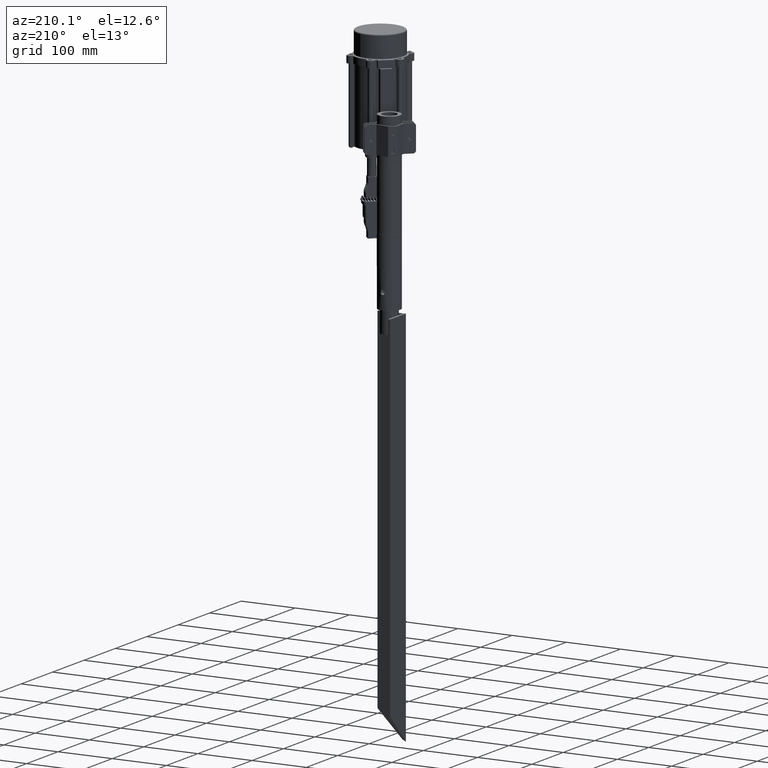
[diagram: clean part render]
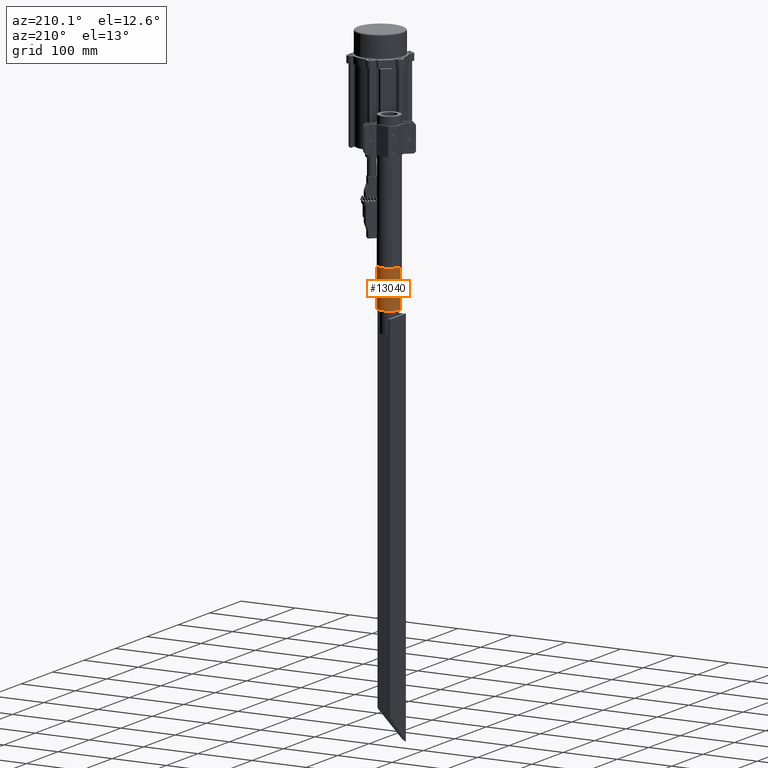
[diagram: same view with one face highlighted and labeled with its STEP entity id]
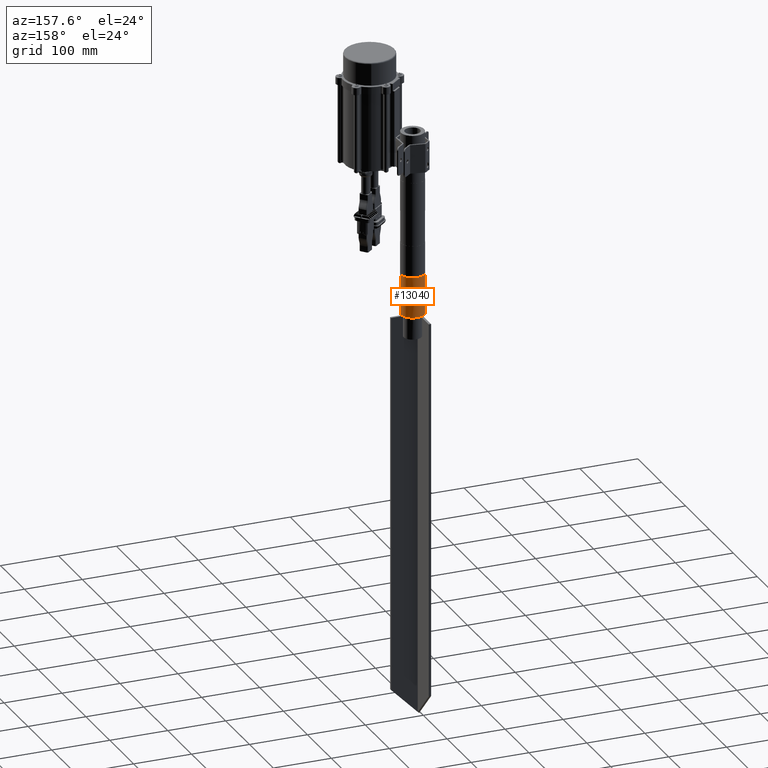
[diagram: same view with one face highlighted and labeled with its STEP entity id]
A machine part, auxiliary view. The second image highlights one B-rep face of the part: STEP entity #13040.
A second angle (auxiliary view) of the same face is appended — the face is thin or edge-on in the first view.
In plain terms, the highlighted cylindrical surface (edge-blend (fillet) strip) has radius 20 mm, axis along (-0, 0, -1).
Its self-contained STEP definition (entity closure, byte-faithful):
#133 = CARTESIAN_POINT ( 'NONE',  ( 3.340632898342827500, 19.71964007639547800, 32.56042299679841500 ) ) ;
#1154 = CARTESIAN_POINT ( 'NONE',  ( 3.338848791572816700, 19.71993705928639400, 27.43742100624696800 ) ) ;
#1196 = DIRECTION ( 'NONE',  ( 1.000000000000000000, 0.0000000000000000000, 0.0000000000000000000 ) ) ;
#1416 = CARTESIAN_POINT ( 'NONE',  ( -1.865290054462114300, 19.91445983498254100, 33.77311992754982800 ) ) ;
#1561 = CARTESIAN_POINT ( 'NONE',  ( -4.172591554658762200, 19.55997198012134000, 29.44765569589234400 ) ) ;
#1700 = CARTESIAN_POINT ( 'NONE',  ( -0.5533532157932989900, 19.99417020490393800, 25.82751478211955000 ) ) ;
#2556 = ORIENTED_EDGE ( 'NONE', *, *, #24304, .T. ) ;
#2959 = CARTESIAN_POINT ( 'NONE',  ( 4.188292898292406800E-015, 20.00000000000000000, 25.79999999999999700 ) ) ;
#2998 = CARTESIAN_POINT ( 'NONE',  ( 3.772138045308473400, 19.64135040021533000, 28.13260208930638500 ) ) ;
#3117 = CARTESIAN_POINT ( 'NONE',  ( 2.778913330987656100, 19.80695987016902000, 33.16102730806841900 ) ) ;
#3124 = CARTESIAN_POINT ( 'NONE',  ( 20.00000000000000000, 2.449293598294706100E-015, 0.0000000000000000000 ) ) ;
#3420 = EDGE_LOOP ( 'NONE', ( #36013, #2556 ) ) ;
#4408 = EDGE_CURVE ( 'NONE', #8132, #35643, #32247, .T. ) ;
#4435 = CARTESIAN_POINT ( 'NONE',  ( -2.562249070927306200, 19.83652140974255600, 33.33917613590236300 ) ) ;
#4550 = CARTESIAN_POINT ( 'NONE',  ( -3.985370952293801200, 19.59919409296579600, 28.64616712573360900 ) ) ;
#4657 = CARTESIAN_POINT ( 'NONE',  ( 4.188292898292406800E-015, 20.00000000000000000, 25.79999999999999700 ) ) ;
#5199 = DIRECTION ( 'NONE',  ( -0.0000000000000000000, -0.0000000000000000000, -1.000000000000000000 ) ) ;
#5903 = DIRECTION ( 'NONE',  ( -0.0000000000000000000, -0.0000000000000000000, -1.000000000000000000 ) ) ;
#5952 = CARTESIAN_POINT ( 'NONE',  ( 4.064755719125387600, 19.58266512661898100, 28.90785091719367000 ) ) ;
#6069 = CARTESIAN_POINT ( 'NONE',  ( 2.107803092557887200, 19.88996432545421600, 33.64330035821642200 ) ) ;
#7364 = CARTESIAN_POINT ( 'NONE',  ( -3.163717384922481600, 19.74915237648187000, 32.77587885422021000 ) ) ;
#7483 = CARTESIAN_POINT ( 'NONE',  ( -3.642939369713126500, 19.66603119724990400, 27.89201163190804400 ) ) ;
#7508 = ORIENTED_EDGE ( 'NONE', *, *, #20117, .T. ) ;
#7954 = B_SPLINE_CURVE_WITH_KNOTS ( 'NONE', 3,
 ( #30754, #10180, #16108, #36689, #19075, #1416, #22036, #4435, #24968, #7364, #27958, #10336, #30863, #13300, #33865, #16231, #36800, #19202, #1561, #22149, #4550, #25112, #7483, #28072, #10457, #31009, #13407, #33987, #16371, #36922, #19321, #1700, #22299, #4657 ),
 .UNSPECIFIED., .F., .F.,
 ( 4, 2, 2, 2, 2, 2, 2, 2, 2, 2, 2, 2, 2, 2, 2, 2, 4 ),
 ( 3.447912666726265800E-019, 0.0008229896707890208900, 0.001645979341578041600, 0.002468969012367062300, 0.003291958683156082700, 0.004114948353945102600, 0.004937938024734123800, 0.005760927695523144200, 0.006583917366312164500, 0.007406907037101184900, 0.008229896707890205200, 0.009052886378679226400, 0.009875876049468247700, 0.01069886572025726700, 0.01152185539104628800, 0.01234484506183530800, 0.01316783473262432900 ),
 .UNSPECIFIED. ) ;
#8079 = DIRECTION ( 'NONE',  ( -0.0000000000000000000, -0.0000000000000000000, -1.000000000000000000 ) ) ;
#8132 = VERTEX_POINT ( 'NONE', #3124 ) ;
#8640 = VERTEX_POINT ( 'NONE', #2959 ) ;
#8741 = CARTESIAN_POINT ( 'NONE',  ( 1.092214860408398500, 19.97201250342688200, 25.93501599662998900 ) ) ;
#8878 = CARTESIAN_POINT ( 'NONE',  ( 4.199870236491766400, 19.55405558993127400, 29.72080140502662000 ) ) ;
#9029 = CARTESIAN_POINT ( 'NONE',  ( 1.361399914003751200, 19.95521969683762700, 33.98264056039925400 ) ) ;
#10180 = CARTESIAN_POINT ( 'NONE',  ( -0.2783380511143903100, 19.99999999999999600, 34.20000000000000300 ) ) ;
#10336 = CARTESIAN_POINT ( 'NONE',  ( -3.644306406445800000, 19.66579103796113900, 32.10600225674826200 ) ) ;
#10457 = CARTESIAN_POINT ( 'NONE',  ( -3.164613277795754100, 19.74902888785459600, 27.22487325469942800 ) ) ;
#11739 = CARTESIAN_POINT ( 'NONE',  ( 1.861490608868710400, 19.91479825350307200, 26.22511422665705500 ) ) ;
#11859 = CARTESIAN_POINT ( 'NONE',  ( 4.173073512967138600, 19.55986808386858700, 30.54844857985792900 ) ) ;
#11984 = CARTESIAN_POINT ( 'NONE',  ( 0.5528406535147852900, 19.99419679058095800, 34.17261522619426700 ) ) ;
#12569 = EDGE_CURVE ( 'NONE', #34386, #21571, #21355, .T. ) ;
#12587 = CARTESIAN_POINT ( 'NONE',  ( 20.00000000000000000, 2.449293598294706100E-015, 70.00000000000000000 ) ) ;
#13040 = ADVANCED_FACE ( 'NONE', ( #35110, #34175 ), #25436, .T. ) ;
#13300 = CARTESIAN_POINT ( 'NONE',  ( -3.983916382603967400, 19.59948544255731000, 31.35763819390511400 ) ) ;
#13398 = CARTESIAN_POINT ( 'NONE',  ( 0.0000000000000000000, 0.0000000000000000000, 70.00000000000000000 ) ) ;
#13407 = CARTESIAN_POINT ( 'NONE',  ( -2.563152241000632000, 19.83639465825728400, 26.66159512432502500 ) ) ;
#13531 = LINE ( 'NONE', #23488, #36068 ) ;
#14137 = B_SPLINE_CURVE_WITH_KNOTS ( 'NONE', 3,
 ( #23317, #17505, #26392, #8741, #29335, #11739, #32266, #14682, #35267, #17628, #1154, #20608, #2998, #23535, #5952, #26528, #8878, #29454, #11859, #32413, #14803, #35386, #17763, #133, #20729, #3117, #23685, #6069, #26644, #9029, #29577, #11984, #32538, #14953 ),
 .UNSPECIFIED., .F., .F.,
 ( 4, 2, 2, 2, 2, 2, 2, 2, 2, 2, 2, 2, 2, 2, 2, 2, 4 ),
 ( 0.01316783473262432900, 0.01399060964804361600, 0.01481338456346290400, 0.01563615947888219100, 0.01645893439430147800, 0.01728170930972076200, 0.01810448422514005300, 0.01892725914055933700, 0.01975003405597862400, 0.02057280897139791100, 0.02139558388681719900, 0.02221835880223648600, 0.02304113371765577300, 0.02386390863307506100, 0.02468668354849434800, 0.02550945846391363500, 0.02633223337933291900 ),
 .UNSPECIFIED. ) ;
#14682 = CARTESIAN_POINT ( 'NONE',  ( 2.563687760922376000, 19.83634061902229800, 26.66188087817690900 ) ) ;
#14803 = CARTESIAN_POINT ( 'NONE',  ( 3.984971638402675900, 19.59927255651121300, 31.35475609599886600 ) ) ;
#14953 = CARTESIAN_POINT ( 'NONE',  ( 3.549401769343951800E-016, 20.00000000000000000, 34.20000000000000300 ) ) ;
#15883 = AXIS2_PLACEMENT_3D ( 'NONE', #13398, #33982, #16362 ) ;
#16108 = CARTESIAN_POINT ( 'NONE',  ( -0.5518720823967746500, 19.99419648656537900, 34.17260632677036400 ) ) ;
#16231 = CARTESIAN_POINT ( 'NONE',  ( -4.173073762568107800, 19.55986981503911100, 30.54951977811592900 ) ) ;
#16362 = DIRECTION ( 'NONE',  ( 1.000000000000000000, 0.0000000000000000000, 0.0000000000000000000 ) ) ;
#16364 = EDGE_LOOP ( 'NONE', ( #27669, #7508, #30303, #37066 ) ) ;
#16371 = CARTESIAN_POINT ( 'NONE',  ( -1.862887576433846200, 19.91468012257299600, 26.22572578509388200 ) ) ;
#16908 = CARTESIAN_POINT ( 'NONE',  ( -20.00000000000000000, 0.0000000000000000000, 318.0000000000000000 ) ) ;
#17227 = CARTESIAN_POINT ( 'NONE',  ( -20.00000000000000000, 0.0000000000000000000, 70.00000000000000000 ) ) ;
#17353 = VECTOR ( 'NONE', #5199, 1000.000000000000000 ) ;
#17505 = CARTESIAN_POINT ( 'NONE',  ( 0.2744674568845612000, 20.00000000000000400, 25.80000000000000400 ) ) ;
#17628 = CARTESIAN_POINT ( 'NONE',  ( 3.161920558549812500, 19.74944587354189100, 27.22201585688232900 ) ) ;
#17763 = CARTESIAN_POINT ( 'NONE',  ( 3.645917826818178200, 19.66548540220053500, 32.10306378507976200 ) ) ;
#18634 = VERTEX_POINT ( 'NONE', #33511 ) ;
#18658 = CARTESIAN_POINT ( 'NONE',  ( -20.00000000000000000, 0.0000000000000000000, 0.0000000000000000000 ) ) ;
#18831 = DIRECTION ( 'NONE',  ( 0.0000000000000000000, 0.0000000000000000000, 1.000000000000000000 ) ) ;
#19075 = CARTESIAN_POINT ( 'NONE',  ( -1.356976831066771100, 19.95554137041529000, 33.98426340179674600 ) ) ;
#19202 = CARTESIAN_POINT ( 'NONE',  ( -4.200108778611416400, 19.55400435359175800, 29.72687047538478900 ) ) ;
#19321 = CARTESIAN_POINT ( 'NONE',  ( -1.093420486391702500, 19.97191712390264900, 25.93548719834731700 ) ) ;
#20117 = EDGE_CURVE ( 'NONE', #34386, #8132, #13531, .T. ) ;
#20608 = CARTESIAN_POINT ( 'NONE',  ( 3.642841742020645100, 19.66605026226151100, 27.89181917407363500 ) ) ;
#20729 = CARTESIAN_POINT ( 'NONE',  ( 3.164551635925968700, 19.74901596392045300, 32.77489925709987500 ) ) ;
#21355 = CIRCLE ( 'NONE', #15883, 20.00000000000000000 ) ;
#21571 = VERTEX_POINT ( 'NONE', #17227 ) ;
#22036 = CARTESIAN_POINT ( 'NONE',  ( -2.106248871028048300, 19.89010853751019400, 33.64402706649399000 ) ) ;
#22095 = AXIS2_PLACEMENT_3D ( 'NONE', #32260, #8079, #29331 ) ;
#22149 = CARTESIAN_POINT ( 'NONE',  ( -4.064964631846025100, 19.58262205852378200, 28.90836496294286600 ) ) ;
#22299 = CARTESIAN_POINT ( 'NONE',  ( -0.2745390965992299800, 20.00000000000000400, 25.79999999999999700 ) ) ;
#23317 = CARTESIAN_POINT ( 'NONE',  ( 4.188292898292406800E-015, 20.00000000000000000, 25.79999999999999700 ) ) ;
#23488 = CARTESIAN_POINT ( 'NONE',  ( 20.00000000000000000, 2.449293598294706100E-015, 318.0000000000000000 ) ) ;
#23535 = CARTESIAN_POINT ( 'NONE',  ( 3.984101755403648900, 19.59945418065239800, 28.64237943728151200 ) ) ;
#23685 = CARTESIAN_POINT ( 'NONE',  ( 2.567297225680597300, 19.83588918349391200, 33.33548442241740900 ) ) ;
#24304 = EDGE_CURVE ( 'NONE', #8640, #18634, #14137, .T. ) ;
#24968 = CARTESIAN_POINT ( 'NONE',  ( -2.777525012803539400, 19.80715734486932800, 33.16227226977982000 ) ) ;
#25112 = CARTESIAN_POINT ( 'NONE',  ( -3.774140768395599600, 19.64096362660108500, 28.13669472732837900 ) ) ;
#25165 = LINE ( 'NONE', #16908, #17353 ) ;
#25436 = CYLINDRICAL_SURFACE ( 'NONE', #22095, 20.00000000000000000 ) ;
#26392 = CARTESIAN_POINT ( 'NONE',  ( 0.5478180382495967400, 19.99435200588668600, 25.82664120330885300 ) ) ;
#26528 = CARTESIAN_POINT ( 'NONE',  ( 4.172175893427454900, 19.56006034836715200, 29.44504325435212900 ) ) ;
#26644 = CARTESIAN_POINT ( 'NONE',  ( 1.866512879255006800, 19.91432480769762100, 33.77239515835256600 ) ) ;
#27099 = EDGE_CURVE ( 'NONE', #18634, #8640, #7954, .T. ) ;
#27669 = ORIENTED_EDGE ( 'NONE', *, *, #12569, .F. ) ;
#27958 = CARTESIAN_POINT ( 'NONE',  ( -3.337282877563797300, 19.72021423128903100, 32.56490890376445400 ) ) ;
#28072 = CARTESIAN_POINT ( 'NONE',  ( -3.339193164920373200, 19.71987777117193700, 27.43788930395934900 ) ) ;
#28851 = EDGE_CURVE ( 'NONE', #21571, #35643, #25165, .T. ) ;
#29331 = DIRECTION ( 'NONE',  ( -1.000000000000000000, 0.0000000000000000000, 0.0000000000000000000 ) ) ;
#29335 = CARTESIAN_POINT ( 'NONE',  ( 1.355840385163133300, 19.95560155982765200, 26.01545401097514800 ) ) ;
#29454 = CARTESIAN_POINT ( 'NONE',  ( 4.200128849857164500, 19.55400004249998200, 30.27528077194391200 ) ) ;
#29577 = CARTESIAN_POINT ( 'NONE',  ( 1.094738525459736600, 19.97185734100689200, 34.06422171822861600 ) ) ;
#30303 = ORIENTED_EDGE ( 'NONE', *, *, #4408, .T. ) ;
#30754 = CARTESIAN_POINT ( 'NONE',  ( 3.549401769343951800E-016, 20.00000000000000000, 34.20000000000000300 ) ) ;
#30863 = CARTESIAN_POINT ( 'NONE',  ( -3.774252074308329000, 19.64093787567629300, 31.86273790123826500 ) ) ;
#31009 = CARTESIAN_POINT ( 'NONE',  ( -2.774427515353557400, 19.80761144543595600, 26.83477368699600900 ) ) ;
#31932 = AXIS2_PLACEMENT_3D ( 'NONE', #36448, #18831, #1196 ) ;
#32247 = CIRCLE ( 'NONE', #31932, 20.00000000000000000 ) ;
#32260 = CARTESIAN_POINT ( 'NONE',  ( 0.0000000000000000000, 0.0000000000000000000, 318.0000000000000000 ) ) ;
#32266 = CARTESIAN_POINT ( 'NONE',  ( 2.106816570671456600, 19.89005349482301500, 26.35625767314313700 ) ) ;
#32413 = CARTESIAN_POINT ( 'NONE',  ( 4.066200111219913500, 19.58236448078945100, 31.08690158013097400 ) ) ;
#32538 = CARTESIAN_POINT ( 'NONE',  ( 0.2782654200800042700, 19.99999999999999300, 34.20000000000000300 ) ) ;
#33511 = CARTESIAN_POINT ( 'NONE',  ( 3.549401769343951800E-016, 20.00000000000000000, 34.20000000000000300 ) ) ;
#33865 = CARTESIAN_POINT ( 'NONE',  ( -4.064955966322119500, 19.58262456365271800, 31.09208498123412700 ) ) ;
#33982 = DIRECTION ( 'NONE',  ( 0.0000000000000000000, 0.0000000000000000000, 1.000000000000000000 ) ) ;
#33987 = CARTESIAN_POINT ( 'NONE',  ( -2.108888380588232800, 19.88981880880026100, 26.35757137026723000 ) ) ;
#34175 = FACE_OUTER_BOUND ( 'NONE', #16364, .T. ) ;
#34386 = VERTEX_POINT ( 'NONE', #12587 ) ;
#35110 = FACE_BOUND ( 'NONE', #3420, .T. ) ;
#35267 = CARTESIAN_POINT ( 'NONE',  ( 2.774575039624473900, 19.80757651203280300, 26.83508754189218200 ) ) ;
#35386 = CARTESIAN_POINT ( 'NONE',  ( 3.774719056171040000, 19.64084977159253500, 31.86195034453096800 ) ) ;
#35643 = VERTEX_POINT ( 'NONE', #18658 ) ;
#36013 = ORIENTED_EDGE ( 'NONE', *, *, #27099, .T. ) ;
#36068 = VECTOR ( 'NONE', #5903, 1000.000000000000000 ) ;
#36448 = CARTESIAN_POINT ( 'NONE',  ( 0.0000000000000000000, 0.0000000000000000000, 0.0000000000000000000 ) ) ;
#36689 = CARTESIAN_POINT ( 'NONE',  ( -1.089771314802165300, 19.97210190290812900, 34.06541570260252900 ) ) ;
#36800 = CARTESIAN_POINT ( 'NONE',  ( -4.199890559246246500, 19.55405122481805000, 30.27646478933031900 ) ) ;
#36922 = CARTESIAN_POINT ( 'NONE',  ( -1.355286002329637100, 19.95565168965235600, 26.01519187116542000 ) ) ;
#37066 = ORIENTED_EDGE ( 'NONE', *, *, #28851, .F. ) ;